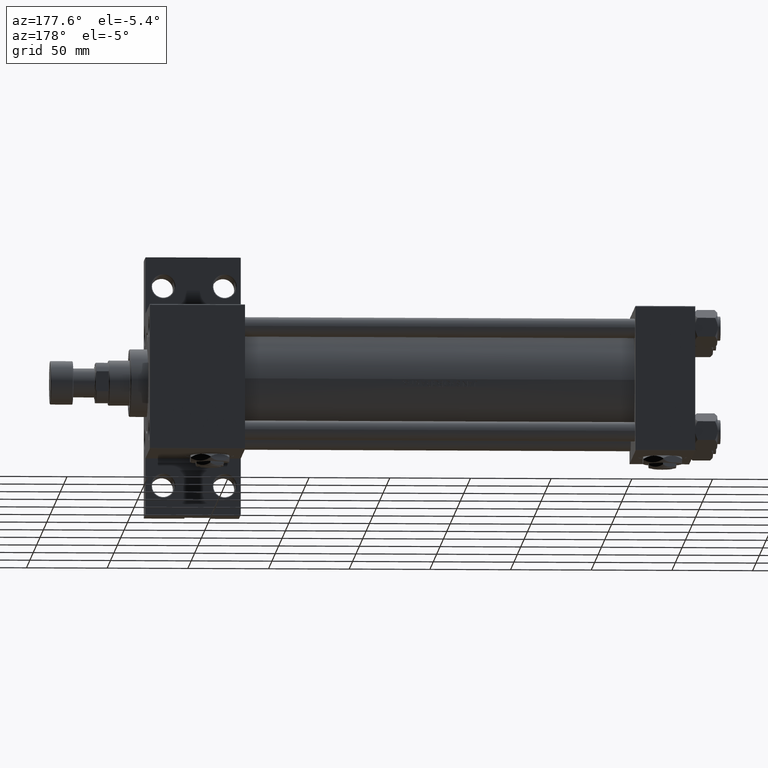
[diagram: clean part render]
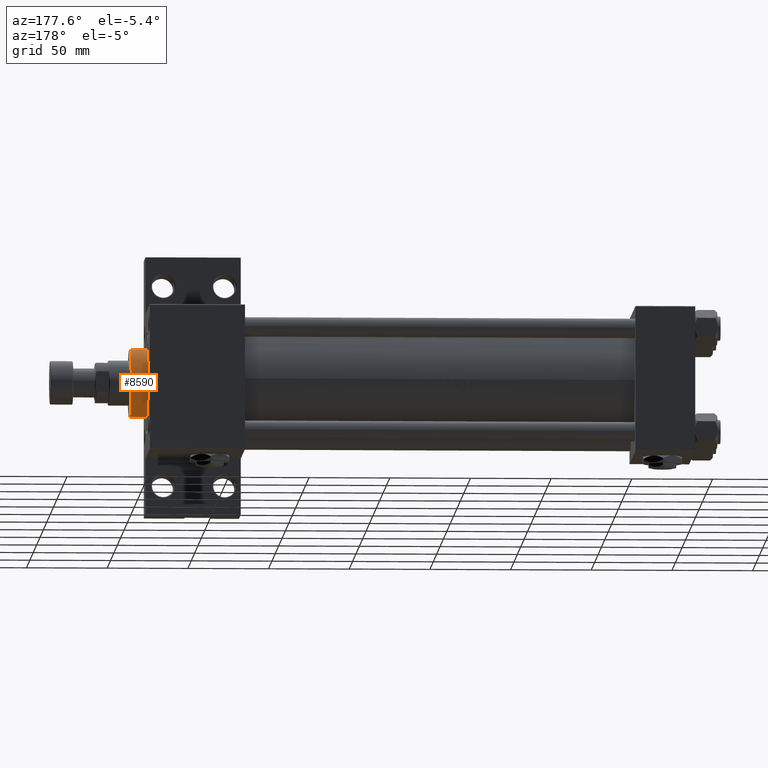
[diagram: same view with one face highlighted and labeled with its STEP entity id]
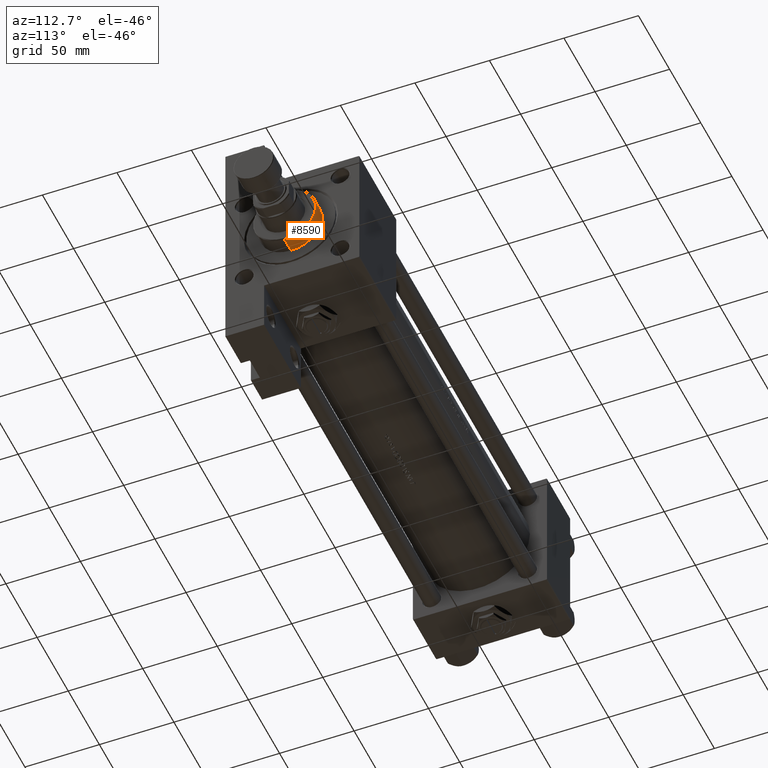
[diagram: same view with one face highlighted and labeled with its STEP entity id]
A machine part, auxiliary view. The second image highlights one B-rep face of the part: STEP entity #8590.
A second angle (auxiliary view) of the same face is appended — the face is thin or edge-on in the first view.
In plain terms, the highlighted cylindrical surface (edge-blend (fillet) strip) has radius 21 mm, axis along (-1, 0, 0).
Its self-contained STEP definition (entity closure, byte-faithful):
#794 = DIRECTION ( 'NONE',  ( -0.000000000000000000, -0.000000000000000000, -1.000000000000000000 ) ) ;
#2770 = DIRECTION ( 'NONE',  ( 1.000000000000000000, 0.000000000000000000, 0.000000000000000000 ) ) ;
#3393 = LINE ( 'NONE', #27780, #13837 ) ;
#3886 = DIRECTION ( 'NONE',  ( -0.000000000000000000, -0.000000000000000000, -1.000000000000000000 ) ) ;
#4609 = LINE ( 'NONE', #35591, #43765 ) ;
#5173 = EDGE_LOOP ( 'NONE', ( #13519, #23087, #34877, #39502 ) ) ;
#5943 = CARTESIAN_POINT ( 'NONE',  ( 0.000000000000000000, 0.000000000000000000, 28.69999999999999929 ) ) ;
#6311 = FACE_OUTER_BOUND ( 'NONE', #5173, .T. ) ;
#6570 = DIRECTION ( 'NONE',  ( 0.000000000000000000, 0.000000000000000000, -1.000000000000000000 ) ) ;
#8590 = ADVANCED_FACE ( 'NONE', ( #6311 ), #37294, .T. ) ;
#9873 = CARTESIAN_POINT ( 'NONE',  ( 0.000000000000000000, 0.000000000000000000, 39.19999999999999574 ) ) ;
#11354 = EDGE_CURVE ( 'NONE', #34157, #45658, #3393, .T. ) ;
#12231 = CIRCLE ( 'NONE', #26847, 21.00000000000000000 ) ;
#13519 = ORIENTED_EDGE ( 'NONE', *, *, #41104, .F. ) ;
#13729 = VERTEX_POINT ( 'NONE', #40181 ) ;
#13837 = VECTOR ( 'NONE', #3886, 1000.000000000000000 ) ;
#14208 = DIRECTION ( 'NONE',  ( -0.000000000000000000, -0.000000000000000000, -1.000000000000000000 ) ) ;
#20423 = CARTESIAN_POINT ( 'NONE',  ( 21.00000000000000000, 2.571758278209441661E-15, 28.69999999999999929 ) ) ;
#22077 = CARTESIAN_POINT ( 'NONE',  ( 0.000000000000000000, 0.000000000000000000, 39.69999999999999574 ) ) ;
#22136 = CIRCLE ( 'NONE', #35106, 21.00000000000000000 ) ;
#23087 = ORIENTED_EDGE ( 'NONE', *, *, #28633, .T. ) ;
#24983 = AXIS2_PLACEMENT_3D ( 'NONE', #22077, #14208, #29698 ) ;
#25261 = DIRECTION ( 'NONE',  ( 1.000000000000000000, 0.000000000000000000, 0.000000000000000000 ) ) ;
#26847 = AXIS2_PLACEMENT_3D ( 'NONE', #5943, #48325, #25261 ) ;
#27780 = CARTESIAN_POINT ( 'NONE',  ( -21.00000000000000000, 0.000000000000000000, 39.69999999999999574 ) ) ;
#28633 = EDGE_CURVE ( 'NONE', #13729, #34157, #22136, .T. ) ;
#29698 = DIRECTION ( 'NONE',  ( -1.000000000000000000, 0.000000000000000000, 0.000000000000000000 ) ) ;
#34157 = VERTEX_POINT ( 'NONE', #49449 ) ;
#34350 = CARTESIAN_POINT ( 'NONE',  ( -21.00000000000000000, 0.000000000000000000, 28.69999999999999929 ) ) ;
#34877 = ORIENTED_EDGE ( 'NONE', *, *, #11354, .T. ) ;
#35106 = AXIS2_PLACEMENT_3D ( 'NONE', #9873, #6570, #2770 ) ;
#35591 = CARTESIAN_POINT ( 'NONE',  ( 21.00000000000000000, 2.571758278209441661E-15, 39.69999999999999574 ) ) ;
#37294 = CYLINDRICAL_SURFACE ( 'NONE', #24983, 21.00000000000000000 ) ;
#39502 = ORIENTED_EDGE ( 'NONE', *, *, #42605, .T. ) ;
#40181 = CARTESIAN_POINT ( 'NONE',  ( 21.00000000000000000, 2.571758278209441661E-15, 39.19999999999999574 ) ) ;
#41104 = EDGE_CURVE ( 'NONE', #13729, #46541, #4609, .T. ) ;
#42605 = EDGE_CURVE ( 'NONE', #45658, #46541, #12231, .T. ) ;
#43765 = VECTOR ( 'NONE', #794, 1000.000000000000000 ) ;
#45658 = VERTEX_POINT ( 'NONE', #34350 ) ;
#46541 = VERTEX_POINT ( 'NONE', #20423 ) ;
#48325 = DIRECTION ( 'NONE',  ( 0.000000000000000000, 0.000000000000000000, 1.000000000000000000 ) ) ;
#49449 = CARTESIAN_POINT ( 'NONE',  ( -21.00000000000000000, 0.000000000000000000, 39.19999999999999574 ) ) ;